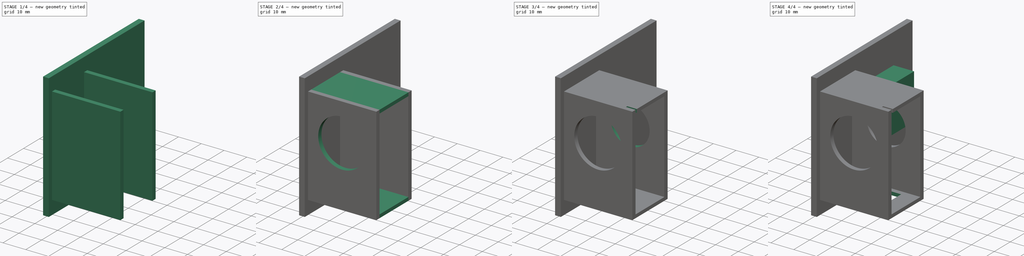
[diagram: build sequence overview — one tinted view per stage of 4, left to right]
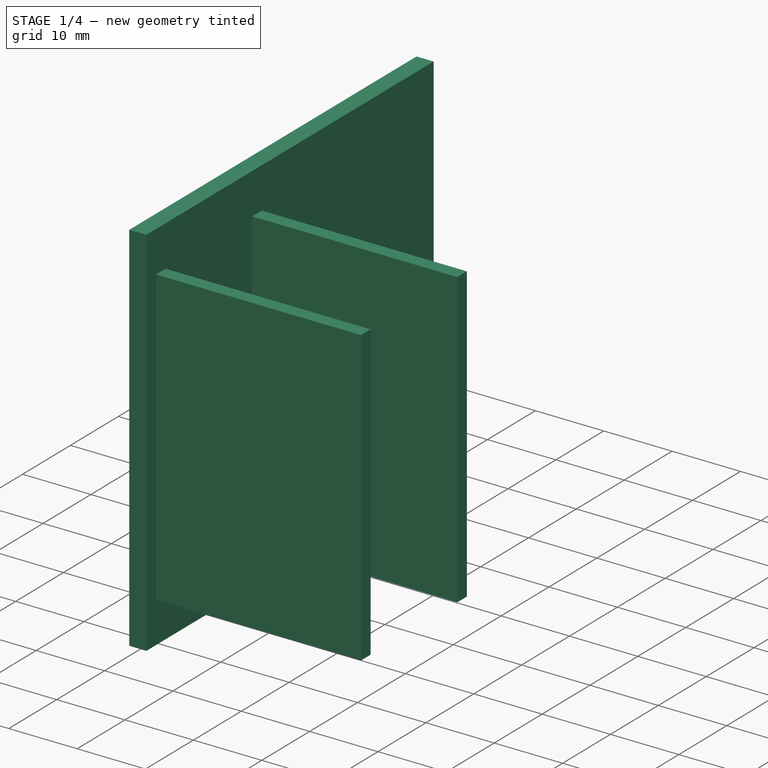
[diagram: stage 1 of 4 — iso view after this stage's code; geometry added in this stage tinted green]
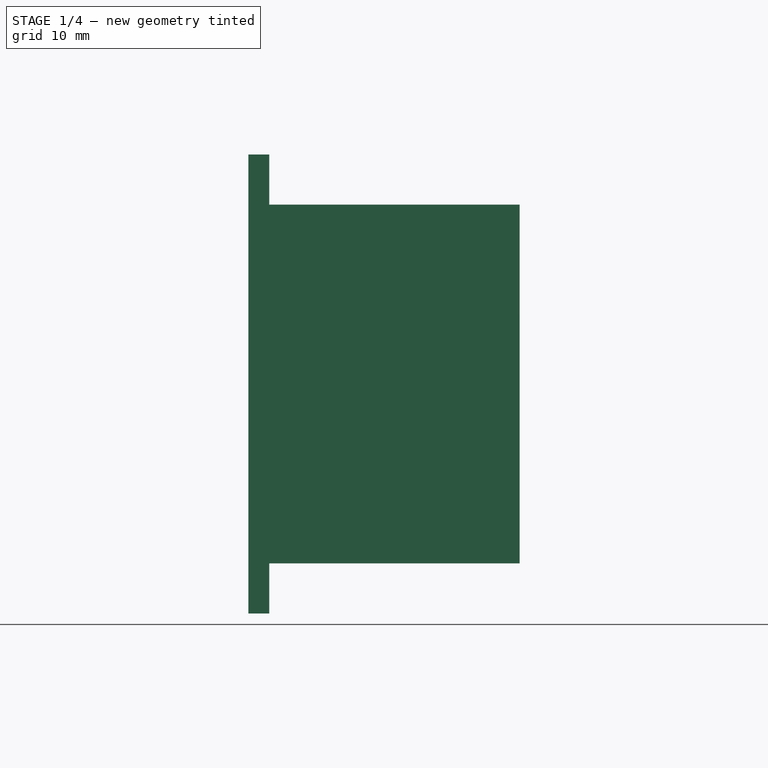
[diagram: stage 1 of 4 — front view after this stage's code; geometry added in this stage tinted green]
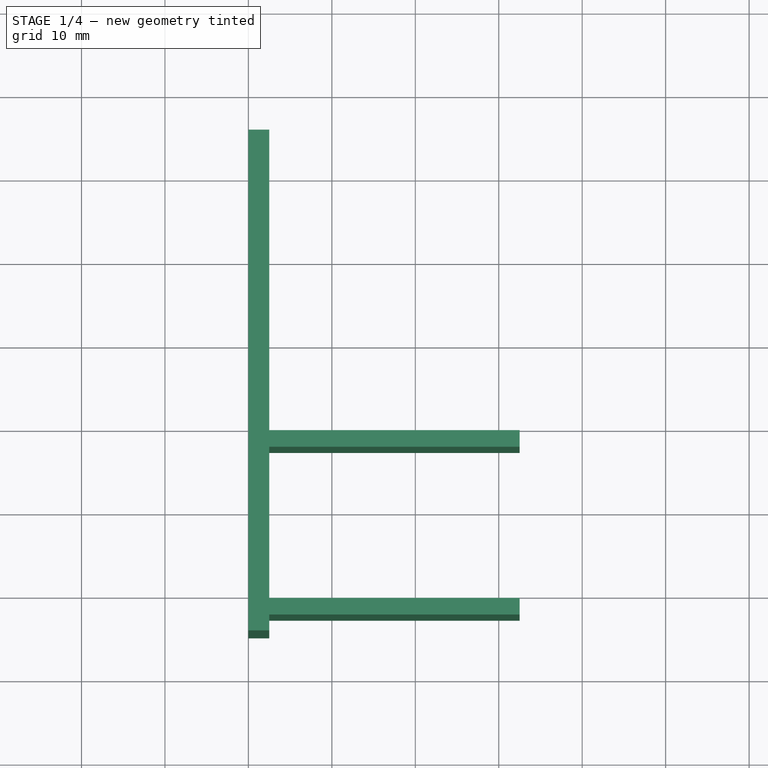
[diagram: stage 1 of 4 — top view after this stage's code; geometry added in this stage tinted green]
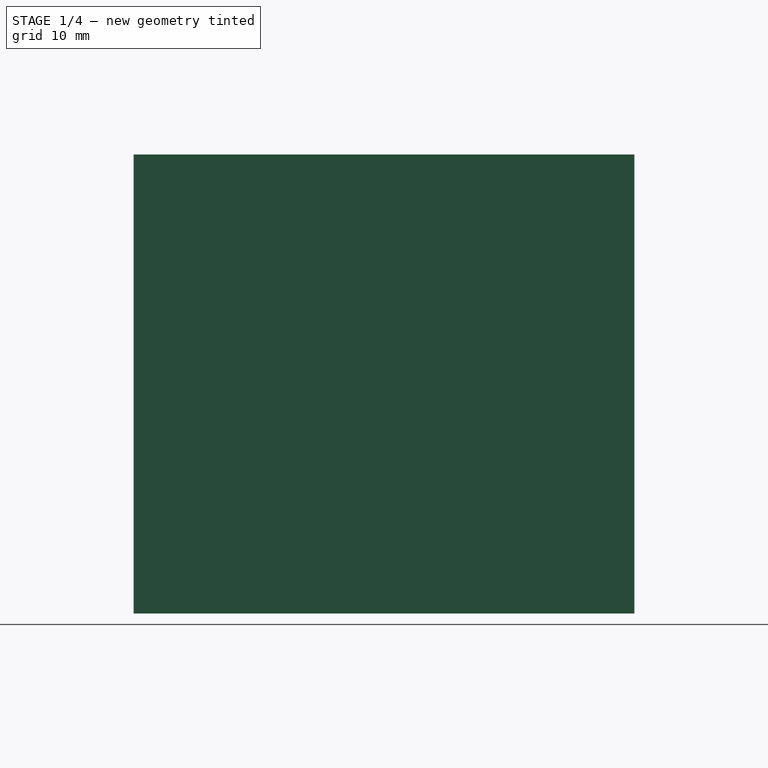
[diagram: stage 1 of 4 — right view after this stage's code; geometry added in this stage tinted green]
FCSTD DOCUMENT  (FreeCAD 0.18R4 (GitTag))
Label: DC Motor Test Rig
License: All rights reserved
LicenseURL: http://en.wikipedia.org/wiki/All_rights_reserved
objects: Sketcher::SketchObject×13, PartDesign::Pad×6, PartDesign::Pocket×5, PartDesign::Body×3
note: 38 computed .brp shape members not serialized (recipe doc carries the construction recipe); baked Part::Feature solids carry a one-line shape summary decoded from their .brp

FEATURE [PartDesign::Body] Body
  Origin = -> Origin
FEATURE [PartDesign::Body] Body001
  Origin = -> Origin001
FEATURE [Sketcher::SketchObject] Sketch
  MapMode = 5
  Placement = pos=(0,0,0) rot=(0.57735,0.57735,0.57735;2.0944rad)
  Support = -> [YZ_Plane002]
  sketch-geometry (4):
    g0: LineSegment StartX=-34.8222 StartY=43.2027 StartZ=0 EndX=25.1778 EndY=43.2027 EndZ=0
    g1: LineSegment StartX=25.1778 StartY=43.2027 StartZ=0 EndX=25.1778 EndY=-11.7973 EndZ=0
    g2: LineSegment StartX=25.1778 StartY=-11.7973 StartZ=0 EndX=-34.8222 EndY=-11.7973 EndZ=0
    g3: LineSegment StartX=-34.8222 StartY=-11.7973 StartZ=0 EndX=-34.8222 EndY=43.2027 EndZ=0
  constraints (10):
    c: Coincident(g0,g1)
    c: Coincident(g1,g2)
    c: Coincident(g2,g3)
    c: Coincident(g3,g0)
    c: Vertical(g3)
    c: Vertical(g1)
    c: Horizontal(g0)
    c: Horizontal(g2)
    c: DistanceX(g0,g0) = 60
    c: DistanceY(g3,g3) = 55
FEATURE [PartDesign::Pad] Pad
  Length = 2.5
  Length2 = 100
  Placement = pos=(0,0,0) rot=(0.57735,0.57735,0.57735;2.0944rad)
  Profile = -> Sketch
  Type = 0
FEATURE [Sketcher::SketchObject] Sketch001
  ExternalGeometry = -> [Pad]
  MapMode = 5
  Placement = pos=(2.5,-1.1e-15,8e-16) rot=(0.57735,0.57735,0.57735;2.0944rad)
  Support = -> [Pad]
  sketch-geometry (4):
    g0: LineSegment StartX=-32.8222 StartY=37.2027 StartZ=0 EndX=-30.8222 EndY=37.2027 EndZ=0
    g1: LineSegment StartX=-30.8222 StartY=37.2027 StartZ=0 EndX=-30.8222 EndY=-5.79732 EndZ=0
    g2: LineSegment StartX=-30.8222 StartY=-5.79732 StartZ=0 EndX=-32.8222 EndY=-5.79732 EndZ=0
    g3: LineSegment StartX=-32.8222 StartY=-5.79732 StartZ=0 EndX=-32.8222 EndY=37.2027 EndZ=0
  constraints (12):
    c: Coincident(g0,g1)
    c: Coincident(g1,g2)
    c: Coincident(g2,g3)
    c: Coincident(g3,g0)
    c: Horizontal(g0)
    c: Horizontal(g2)
    c: Vertical(g3)
    c: Vertical(g1)
    c: DistanceX(g0,g0) = 2
    c: DistanceY(g1,g1) = 43
    c: DistanceY(g0,g-3) = 6
    c: DistanceX(g-3,g0) = 2
FEATURE [PartDesign::Pad] Pad001
  BaseFeature = -> Pad
  Length = 30
  Length2 = 100
  Placement = pos=(0,0,0) rot=(0.57735,0.57735,0.57735;2.0944rad)
  Profile = -> Sketch001
  Type = 0
FEATURE [Sketcher::SketchObject] Sketch002
  MapMode = 5
  Placement = pos=(2.5,-1.7e-15,1.1e-15) rot=(0.57735,0.57735,0.57735;2.0944rad)
  Support = -> [Pad001]
FEATURE [Sketcher::SketchObject] Sketch003
  ExternalGeometry = -> [Pad001]
  MapMode = 5
  Placement = pos=(2.5,-1.7e-15,1.1e-15) rot=(0.57735,0.57735,0.57735;2.0944rad)
  Support = -> [Pad001]
  sketch-geometry (4):
    g0: LineSegment StartX=-12.7222 StartY=37.2027 StartZ=0 EndX=-10.7222 EndY=37.2027 EndZ=0
    g1: LineSegment StartX=-10.7222 StartY=37.2027 StartZ=0 EndX=-10.7222 EndY=-5.79732 EndZ=0
    g2: LineSegment StartX=-10.7222 StartY=-5.79732 StartZ=0 EndX=-12.7222 EndY=-5.79732 EndZ=0
    g3: LineSegment StartX=-12.7222 StartY=-5.79732 StartZ=0 EndX=-12.7222 EndY=37.2027 EndZ=0
  constraints (12):
    c: Coincident(g0,g1)
    c: Coincident(g1,g2)
    c: Coincident(g2,g3)
    c: Coincident(g3,g0)
    c: Vertical(g3)
    c: Vertical(g1)
    c: Horizontal(g0)
    c: Horizontal(g2)
    c: DistanceX(g0,g0) = 2
    c: DistanceY(g1,g1) = 43
    c: DistanceX(g-3,g0) = 18.1
    c: DistanceY(g0,g-3) = 0
FEATURE [PartDesign::Pad] Pad002
  BaseFeature = -> Pad001
  Length = 30
  Length2 = 100
  Placement = pos=(0,0,0) rot=(0.57735,0.57735,0.57735;2.0944rad)
  Profile = -> Sketch003
  Type = 0
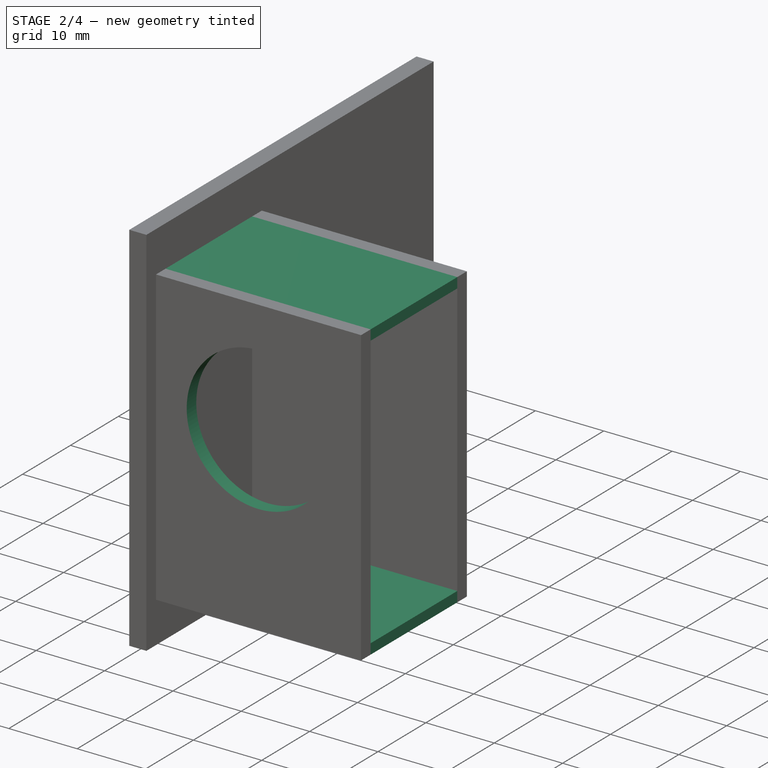
[diagram: stage 2 of 4 — iso view after this stage's code; geometry added in this stage tinted green]
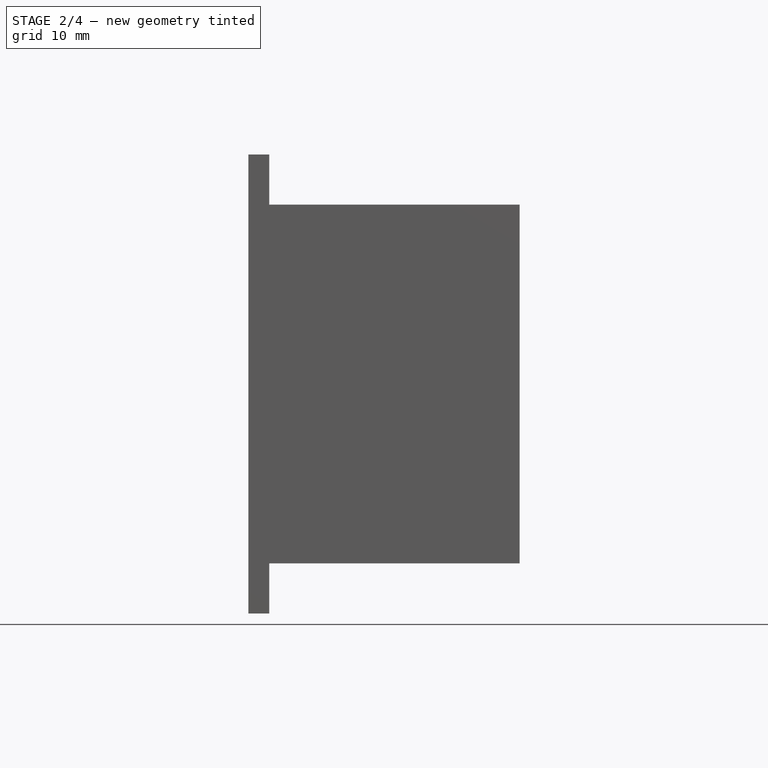
[diagram: stage 2 of 4 — front view after this stage's code; geometry added in this stage tinted green]
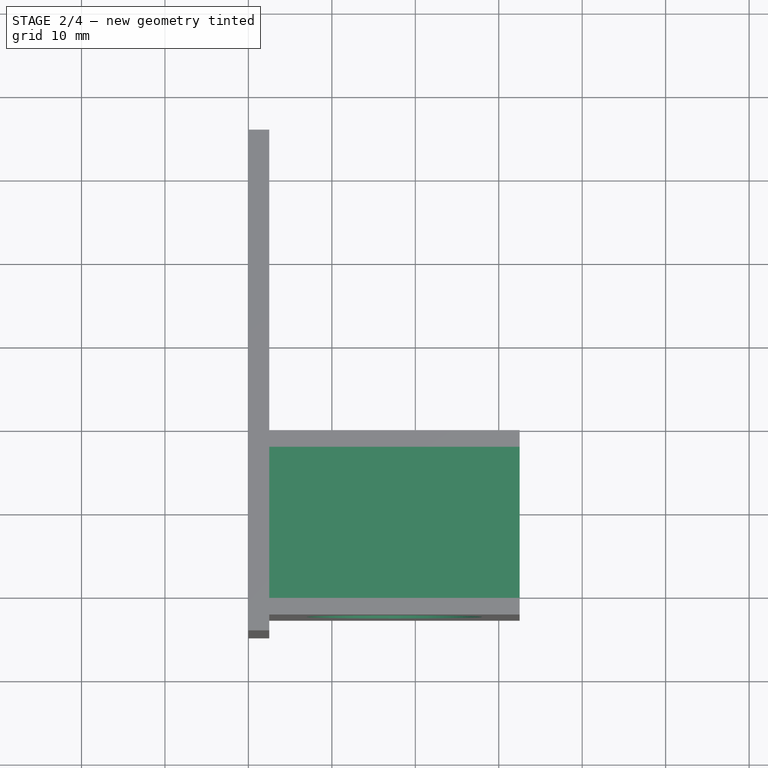
[diagram: stage 2 of 4 — top view after this stage's code; geometry added in this stage tinted green]
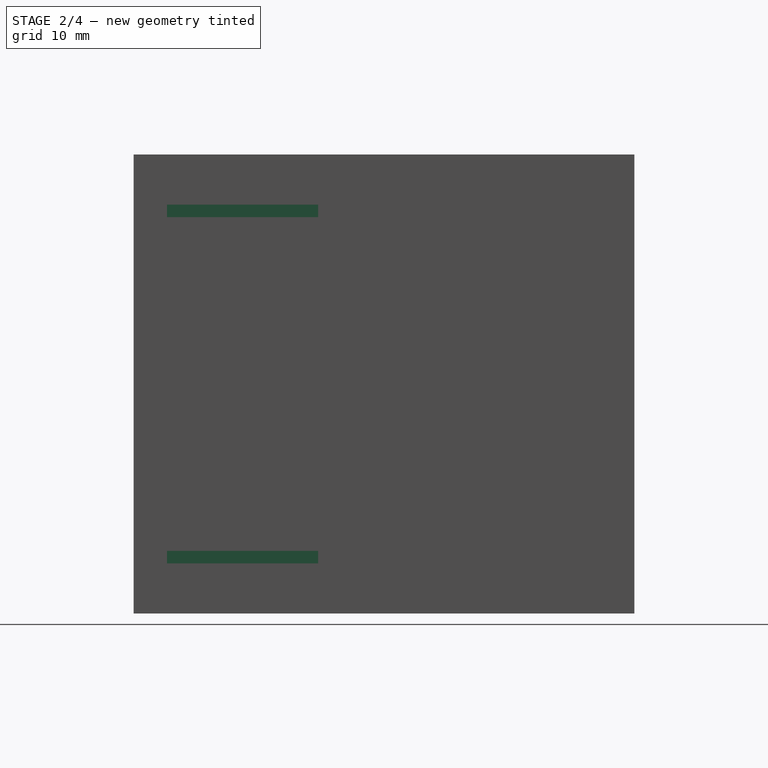
[diagram: stage 2 of 4 — right view after this stage's code; geometry added in this stage tinted green]
FEATURE [Sketcher::SketchObject] Sketch004
  ExternalGeometry = -> [Pad002]
  MapMode = 5
  Placement = pos=(-2.05e-14,-30.8222,1.37e-14) rot=(0.57735,0.57735,0.57735;4.18879rad)
  Support = -> [Pad002]
  sketch-geometry (4):
    g0: LineSegment StartX=-5.79732 StartY=32.5 StartZ=0 EndX=-4.29732 EndY=32.5 EndZ=0
    g1: LineSegment StartX=-4.29732 StartY=32.5 StartZ=0 EndX=-4.29732 EndY=2.51815 EndZ=0
    g2: LineSegment StartX=-4.29732 StartY=2.51815 StartZ=0 EndX=-5.79732 EndY=2.51815 EndZ=0
    g3: LineSegment StartX=-5.79732 StartY=2.51815 StartZ=0 EndX=-5.79732 EndY=32.5 EndZ=0
  constraints (10):
    c: Coincident(g0,g1)
    c: Coincident(g1,g2)
    c: Coincident(g2,g3)
    c: Coincident(g3,g0)
    c: Vertical(g3)
    c: Vertical(g1)
    c: Horizontal(g0)
    c: Horizontal(g2)
    c: Coincident(g0,g-3)
    c: DistanceX(g0,g0) = 1.5
FEATURE [PartDesign::Pad] Pad003
  BaseFeature = -> Pad002
  Length = 18.2
  Length2 = 100
  Placement = pos=(0,0,0) rot=(0.57735,0.57735,0.57735;2.0944rad)
  Profile = -> Sketch004
  Type = 0
FEATURE [Sketcher::SketchObject] Sketch005
  ExternalGeometry = -> [Pad003]
  MapMode = 5
  Placement = pos=(-2.05e-14,-30.8222,2.4e-14) rot=(0.57735,0.57735,0.57735;4.18879rad)
  Support = -> [Pad003]
  sketch-geometry (4):
    g0: LineSegment StartX=35.7027 StartY=32.5 StartZ=0 EndX=35.7027 EndY=2.5 EndZ=0
    g1: LineSegment StartX=35.7027 StartY=2.5 StartZ=0 EndX=37.2027 EndY=2.5 EndZ=0
    g2: LineSegment StartX=37.2027 StartY=2.5 StartZ=0 EndX=37.2027 EndY=32.5 EndZ=0
    g3: LineSegment StartX=37.2027 StartY=32.5 StartZ=0 EndX=35.7027 EndY=32.5 EndZ=0
  constraints (11):
    c: Coincident(g0,g1)
    c: Coincident(g1,g2)
    c: Coincident(g2,g3)
    c: Coincident(g3,g0)
    c: Horizontal(g3)
    c: Horizontal(g1)
    c: Vertical(g0)
    c: Vertical(g2)
    c: DistanceY(g0,g0) = 30
    c: DistanceX(g3,g3) = 1.5
    c: Coincident(g2,g-3)
FEATURE [PartDesign::Pad] Pad004
  BaseFeature = -> Pad003
  Length = 18.2
  Length2 = 100
  Placement = pos=(0,0,0) rot=(0.57735,0.57735,0.57735;2.0944rad)
  Profile = -> Sketch005
  Type = 0
FEATURE [Sketcher::SketchObject] Sketch006
  ExternalGeometry = -> [Pad004]
  MapMode = 5
  Placement = pos=(-2.19e-14,-32.8222,3.64e-14) rot=(0.57735,0.57735,-0.57735;2.0944rad)
  Support = -> [Pad004]
  sketch-geometry (2):
    g0: GeomPoint X=-20.7027 Y=17.5 Z=0
    g1: Circle CenterX=-20.7027 CenterY=17.5 CenterZ=0 NormalX=0 NormalY=0 NormalZ=1 AngleXU=0 Radius=10.5041
  constraints (2):
    c: DistanceX(g0,g-3) = 26.5
    c: DistanceY(g-3,g0) = 15
FEATURE [PartDesign::Pocket] Pocket
  BaseFeature = -> Pad004
  Length = 2
  Length2 = 100
  Placement = pos=(0,0,0) rot=(0.57735,0.57735,0.57735;2.0944rad)
  Profile = -> Sketch006
  Type = 0
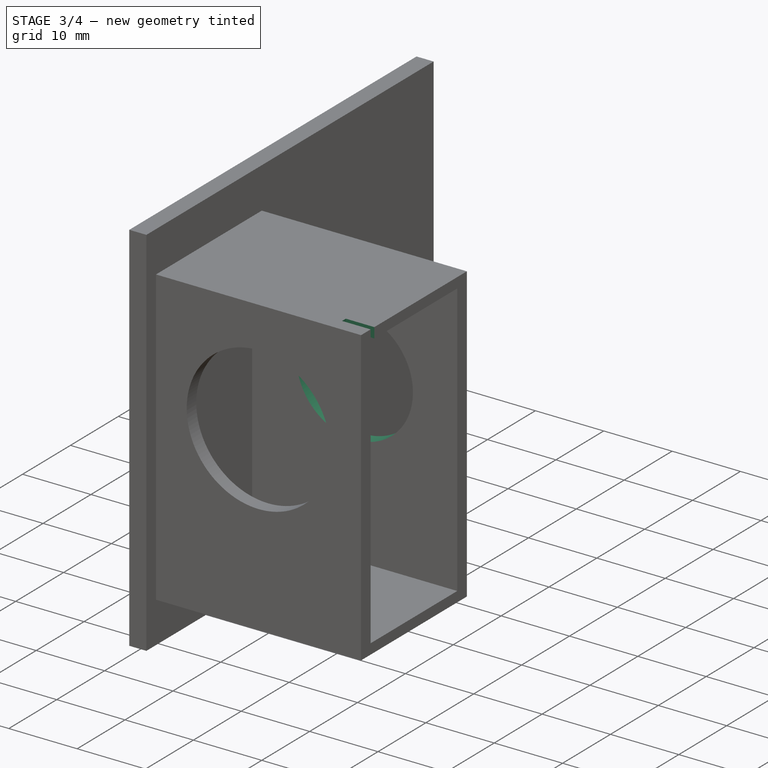
[diagram: stage 3 of 4 — iso view after this stage's code; geometry added in this stage tinted green]
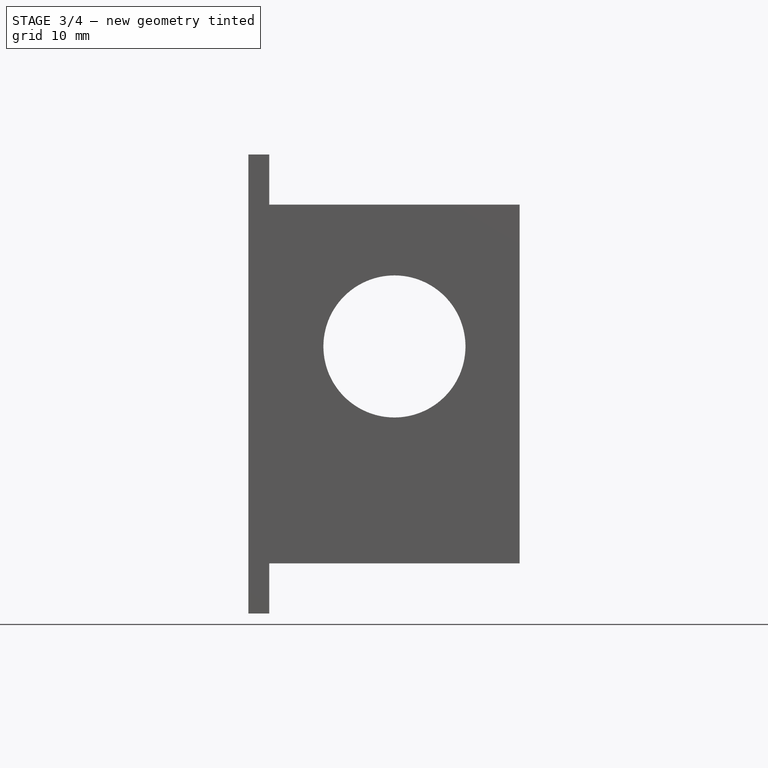
[diagram: stage 3 of 4 — front view after this stage's code; geometry added in this stage tinted green]
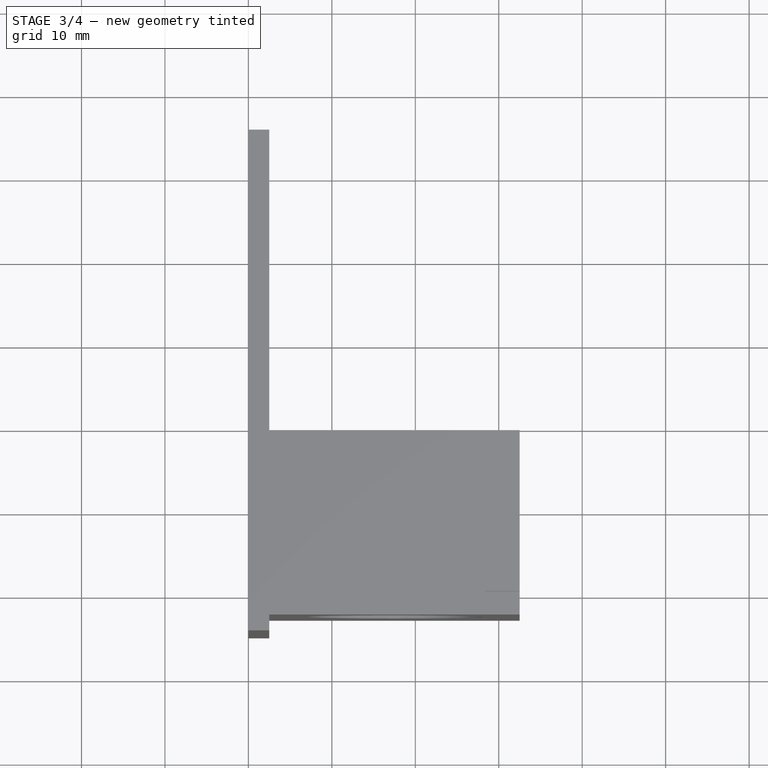
[diagram: stage 3 of 4 — top view after this stage's code; geometry added in this stage tinted green]
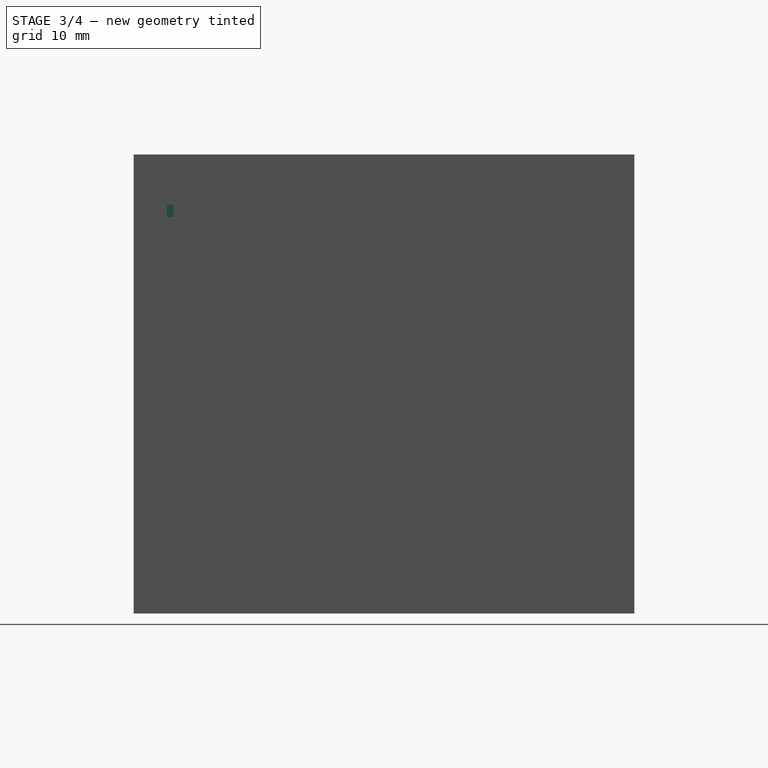
[diagram: stage 3 of 4 — right view after this stage's code; geometry added in this stage tinted green]
FEATURE [Sketcher::SketchObject] Sketch007
  ExternalGeometry = -> [Pocket]
  MapMode = 5
  Placement = pos=(-1.65e-14,4.34e-14,37.2027) rot=(0,0,-1;1.5708rad)
  Support = -> [Pocket]
  sketch-geometry (4):
    g0: LineSegment StartX=30.0422 StartY=32.5 StartZ=0 EndX=30.0422 EndY=28.3243 EndZ=0
    g1: LineSegment StartX=30.0422 StartY=28.3243 StartZ=0 EndX=30.8222 EndY=28.3243 EndZ=0
    g2: LineSegment StartX=30.8222 StartY=28.3243 StartZ=0 EndX=30.8222 EndY=32.5 EndZ=0
    g3: LineSegment StartX=30.8222 StartY=32.5 StartZ=0 EndX=30.0422 EndY=32.5 EndZ=0
  constraints (9):
    c: Coincident(g0,g1)
    c: Coincident(g1,g2)
    c: Coincident(g2,g3)
    c: Coincident(g3,g0)
    c: Horizontal(g3)
    c: Horizontal(g1)
    c: Vertical(g0)
    c: Vertical(g2)
    c: Coincident(g2,g-3)
FEATURE [PartDesign::Pocket] Pocket001
  BaseFeature = -> Pocket
  Length = 2
  Length2 = 100
  Placement = pos=(0,0,0) rot=(0.57735,0.57735,0.57735;2.0944rad)
  Profile = -> Sketch007
  Type = 0
FEATURE [Sketcher::SketchObject] Sketch008
  MapMode = 5
  Placement = pos=(-1.19e-14,-10.7222,1.67e-14) rot=(0.57735,0.57735,0.57735;4.18879rad)
  Support = -> [Pocket001]
  sketch-geometry (1):
    g0: GeomPoint X=24.5552 Y=18.0909 Z=0
FEATURE [Sketcher::SketchObject] Sketch009
  ExternalGeometry = -> [Pocket]
  MapMode = 5
  Placement = pos=(-1.19e-14,-10.7222,1.31e-14) rot=(0.57735,0.57735,0.57735;4.18879rad)
  Support = -> [Pocket]
  sketch-geometry (2):
    g0: GeomPoint X=20.2027 Y=17.5 Z=0
    g1: Circle CenterX=20.2027 CenterY=17.5 CenterZ=0 NormalX=0 NormalY=0 NormalZ=1 AngleXU=0 Radius=8.51169
  constraints (3):
    c: DistanceY(g-3,g0) = 15
    c: DistanceX(g-3,g0) = 26
    c: Coincident(g0,g1)
FEATURE [PartDesign::Pocket] Pocket002
  BaseFeature = -> Pocket001
  Length = 2
  Length2 = 100
  Placement = pos=(0,0,0) rot=(0.57735,0.57735,0.57735;2.0944rad)
  Profile = -> Sketch009
  Type = 0
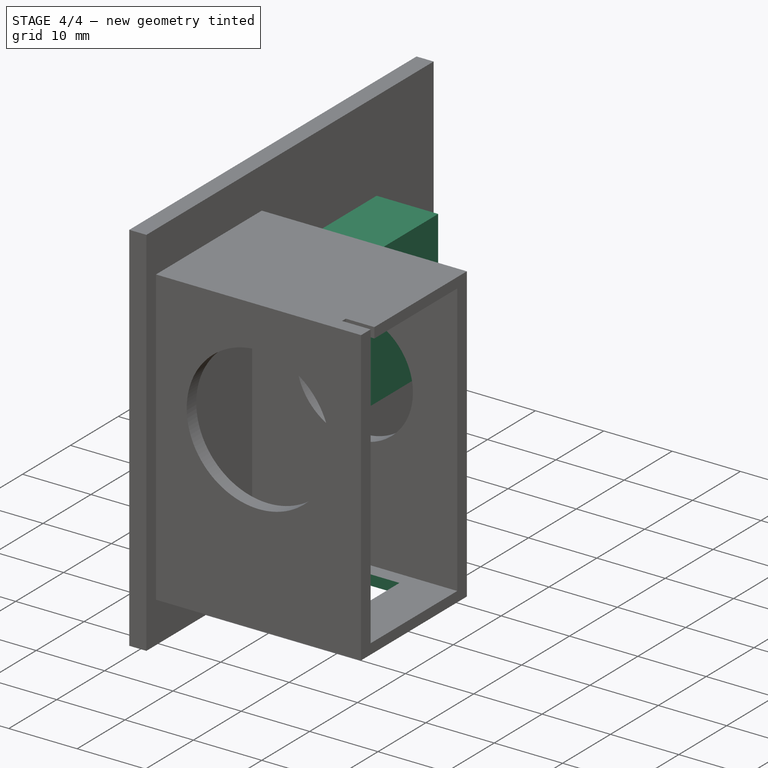
[diagram: stage 4 of 4 — iso view after this stage's code; geometry added in this stage tinted green]
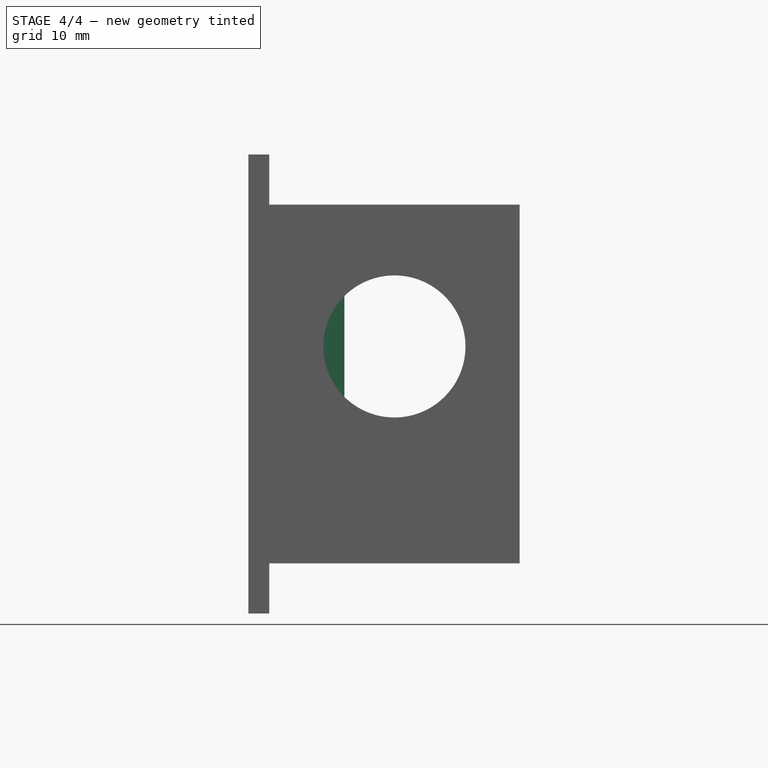
[diagram: stage 4 of 4 — front view after this stage's code; geometry added in this stage tinted green]
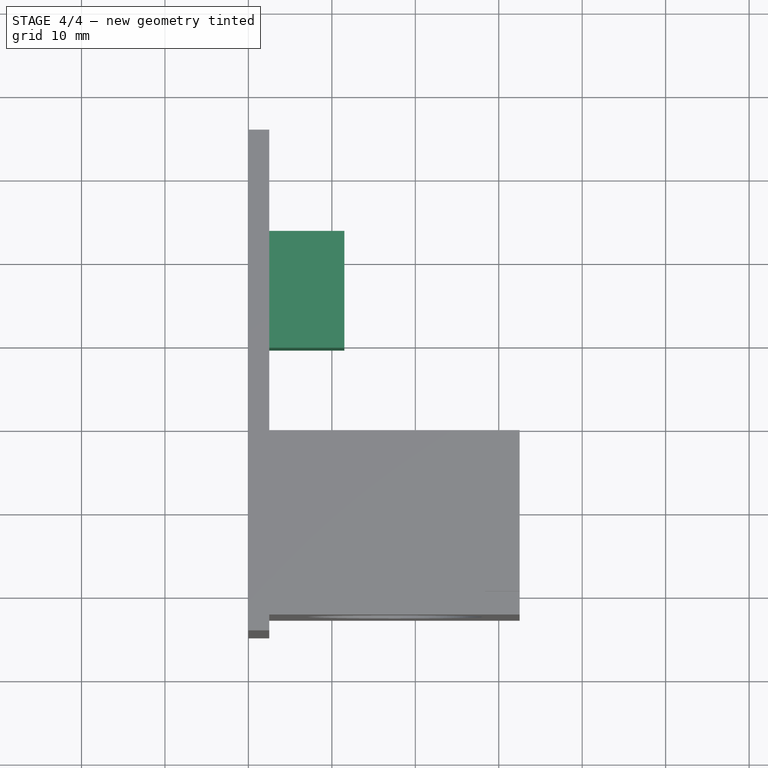
[diagram: stage 4 of 4 — top view after this stage's code; geometry added in this stage tinted green]
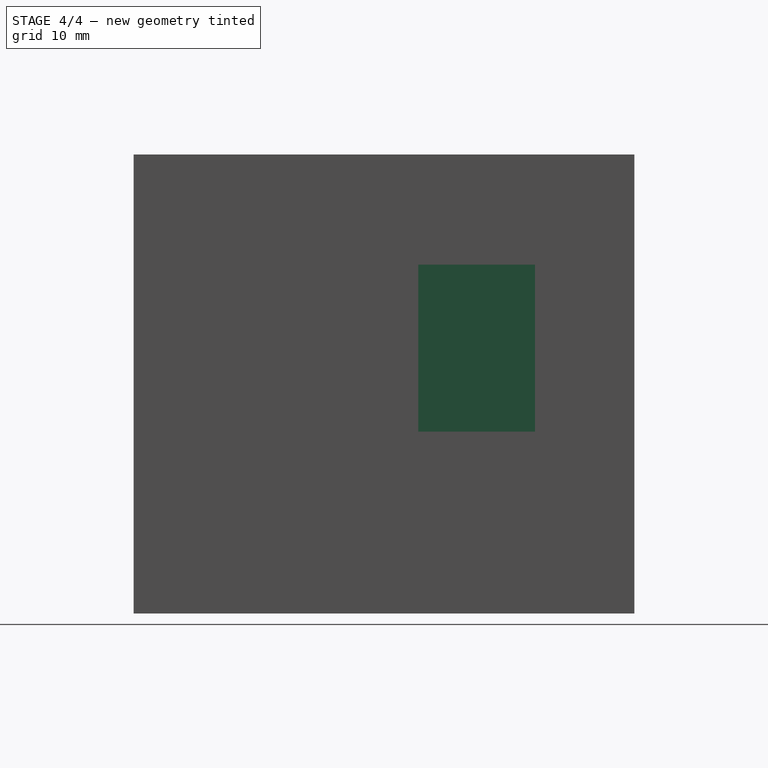
[diagram: stage 4 of 4 — right view after this stage's code; geometry added in this stage tinted green]
FEATURE [Sketcher::SketchObject] Sketch010
  ExternalGeometry = -> [Pocket002]
  MapMode = 5
  Placement = pos=(9.7e-15,-6.8e-15,-5.79732) rot=(0.707107,0.707107,0;3.14159rad)
  Support = -> [Pocket002]
  sketch-geometry (4):
    g0: LineSegment StartX=-22.3222 StartY=25.5181 StartZ=0 EndX=-22.3222 EndY=9.51815 EndZ=0
    g1: LineSegment StartX=-22.3222 StartY=9.51815 StartZ=0 EndX=-14.8222 EndY=9.51815 EndZ=0
    g2: LineSegment StartX=-14.8222 StartY=9.51815 StartZ=0 EndX=-14.8222 EndY=25.5181 EndZ=0
    g3: LineSegment StartX=-14.8222 StartY=25.5181 StartZ=0 EndX=-22.3222 EndY=25.5181 EndZ=0
  constraints (12):
    c: Coincident(g0,g1)
    c: Coincident(g1,g2)
    c: Coincident(g2,g3)
    c: Coincident(g3,g0)
    c: Vertical(g0)
    c: Vertical(g2)
    c: Horizontal(g3)
    c: Horizontal(g1)
    c: DistanceX(g1,g1) = 7.5
    c: DistanceY(g0,g0) = 16
    c: DistanceY(g-3,g1) = 7
    c: DistanceX(g1,g-3) = 2.1
FEATURE [PartDesign::Pocket] Pocket003
  BaseFeature = -> Pocket002
  Length = 2
  Length2 = 100
  Placement = pos=(0,0,0) rot=(0.57735,0.57735,0.57735;2.0944rad)
  Profile = -> Sketch010
  Type = 0
FEATURE [Sketcher::SketchObject] Sketch011
  ExternalGeometry = -> [Pocket003]
  MapMode = 5
  Placement = pos=(2.5,-5.6e-15,3.1e-15) rot=(0.57735,0.57735,0.57735;2.0944rad)
  Support = -> [Pocket003]
  sketch-geometry (4):
    g0: LineSegment StartX=-0.722152 StartY=30.0027 StartZ=0 EndX=13.2778 EndY=30.0027 EndZ=0
    g1: LineSegment StartX=13.2778 StartY=30.0027 StartZ=0 EndX=13.2778 EndY=10.0027 EndZ=0
    g2: LineSegment StartX=13.2778 StartY=10.0027 StartZ=0 EndX=-0.722152 EndY=10.0027 EndZ=0
    g3: LineSegment StartX=-0.722152 StartY=10.0027 StartZ=0 EndX=-0.722152 EndY=30.0027 EndZ=0
  constraints (12):
    c: Coincident(g0,g1)
    c: Coincident(g1,g2)
    c: Coincident(g2,g3)
    c: Coincident(g3,g0)
    c: Horizontal(g0)
    c: Horizontal(g2)
    c: Vertical(g3)
    c: Vertical(g1)
    c: DistanceX(g0,g0) = 14
    c: DistanceY(g3,g3) = 20
    c: DistanceX(g-3,g0) = 10
    c: DistanceY(g0,g-3) = 7.2
FEATURE [PartDesign::Pad] Pad005
  BaseFeature = -> Pocket003
  Length = 9
  Length2 = 100
  Placement = pos=(0,0,0) rot=(0.57735,0.57735,0.57735;2.0944rad)
  Profile = -> Sketch011
  Type = 0
FEATURE [Sketcher::SketchObject] Sketch012
  ExternalGeometry = -> [Pad005]
  MapMode = 5
  Placement = pos=(11.5,-2.81e-14,1.66e-14) rot=(0.57735,0.57735,0.57735;2.0944rad)
  Support = -> [Pad005]
  sketch-geometry (4):
    g0: GeomPoint X=9.27785 Y=28.1527 Z=0
    g1: GeomPoint X=9.27785 Y=11.8527 Z=0
    g2: Circle CenterX=9.27785 CenterY=28.1527 CenterZ=0 NormalX=0 NormalY=0 NormalZ=1 AngleXU=0 Radius=0.957136
    g3: Circle CenterX=9.27785 CenterY=11.8527 CenterZ=0 NormalX=0 NormalY=0 NormalZ=1 AngleXU=0 Radius=0.955296
  constraints (4):
    c: DistanceY(g0,g-3) = 1.85
    c: DistanceY(g-3,g1) = 1.85
    c: DistanceX(g-3,g0) = 10
    c: DistanceX(g-3,g1) = 10
FEATURE [PartDesign::Pocket] Pocket004
  BaseFeature = -> Pad005
  Length = 12
  Length2 = 100
  Placement = pos=(0,0,0) rot=(0.57735,0.57735,0.57735;2.0944rad)
  Profile = -> Sketch012
  Type = 0
FEATURE [PartDesign::Body] Body002
  Group = -> [Sketch,Pad,Sketch001,Pad001,Sketch002,Sketch003,Pad002,Sketch004,Pad003,Sketch005,Pad004,Sketch006,Pocket,Sketch007,Pocket001,Sketch008,Sketch009,Pocket002,Sketch010,Pocket003,Sketch011,Pad005,Sketch012,Pocket004]
  Origin = -> Origin002
  Tip = -> Pocket004
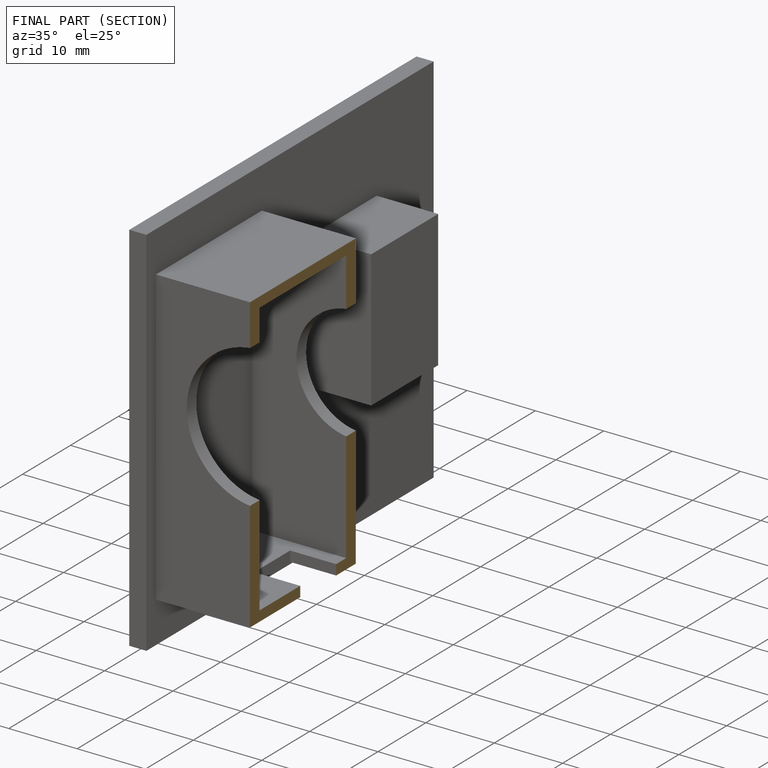
[diagram: finished part — half-section view (interior)]
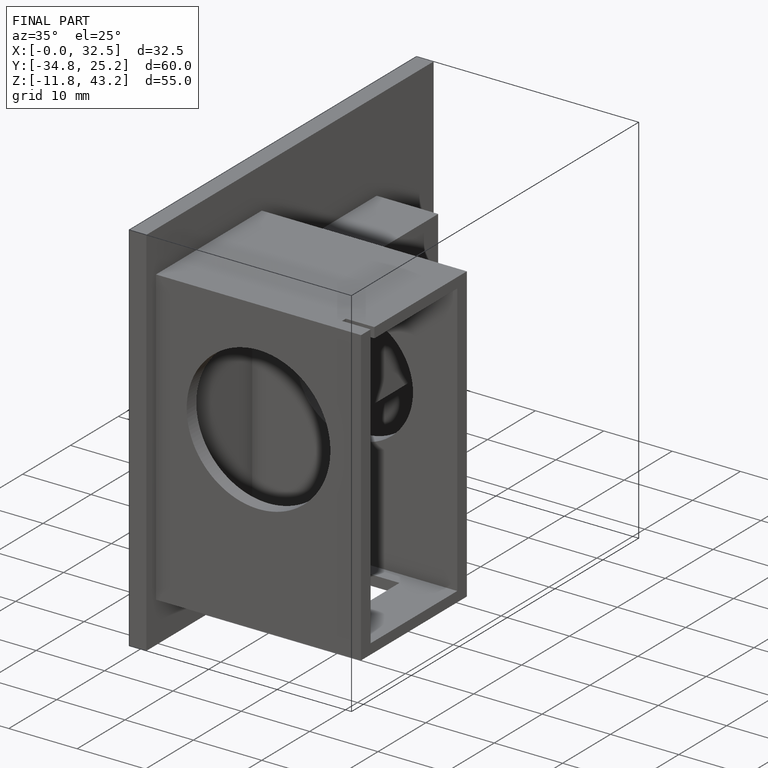
[diagram: finished part — iso view with bounding-box wireframe]
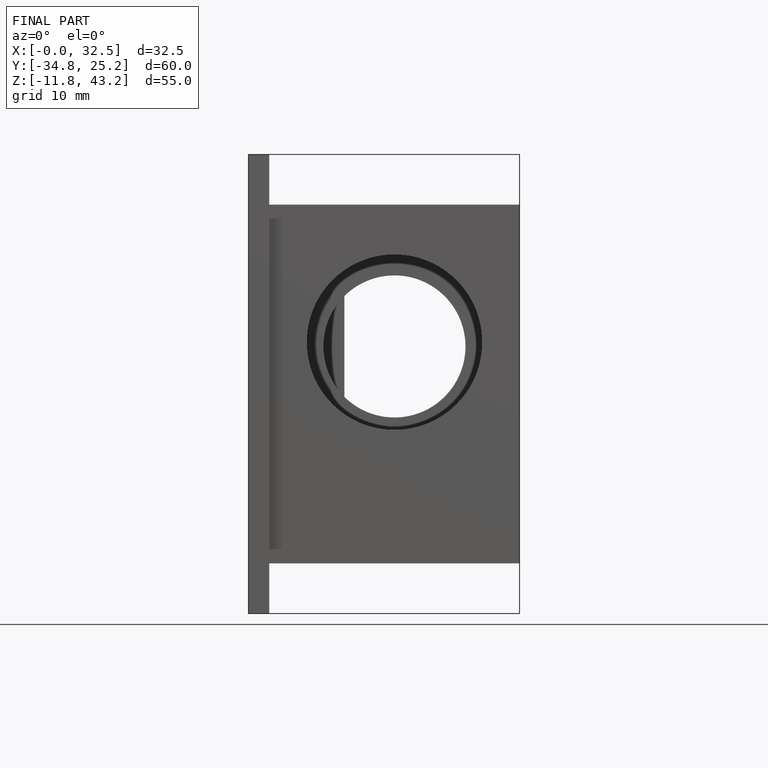
[diagram: finished part — front view with bounding-box wireframe]
